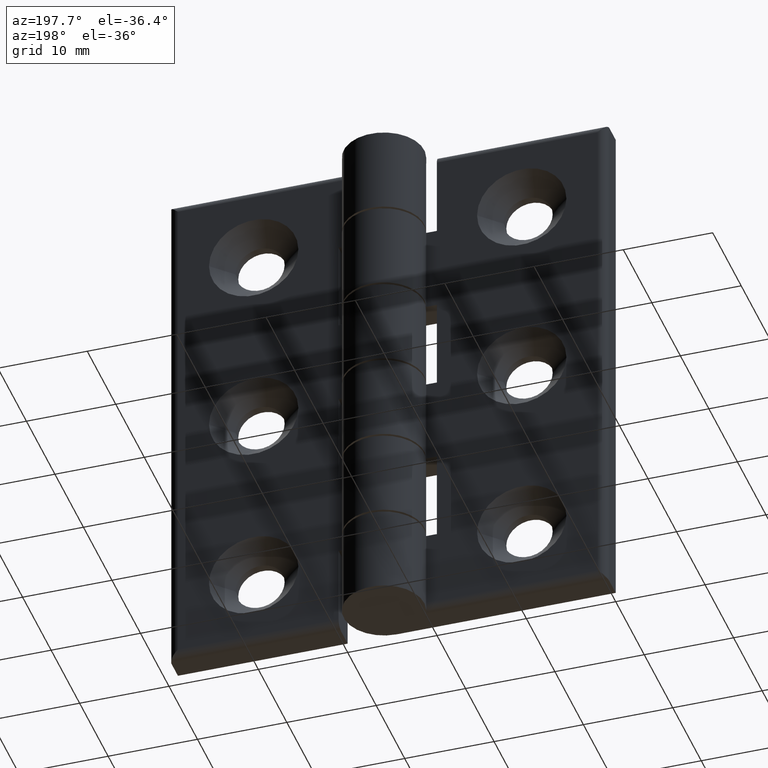
[diagram: clean part render]
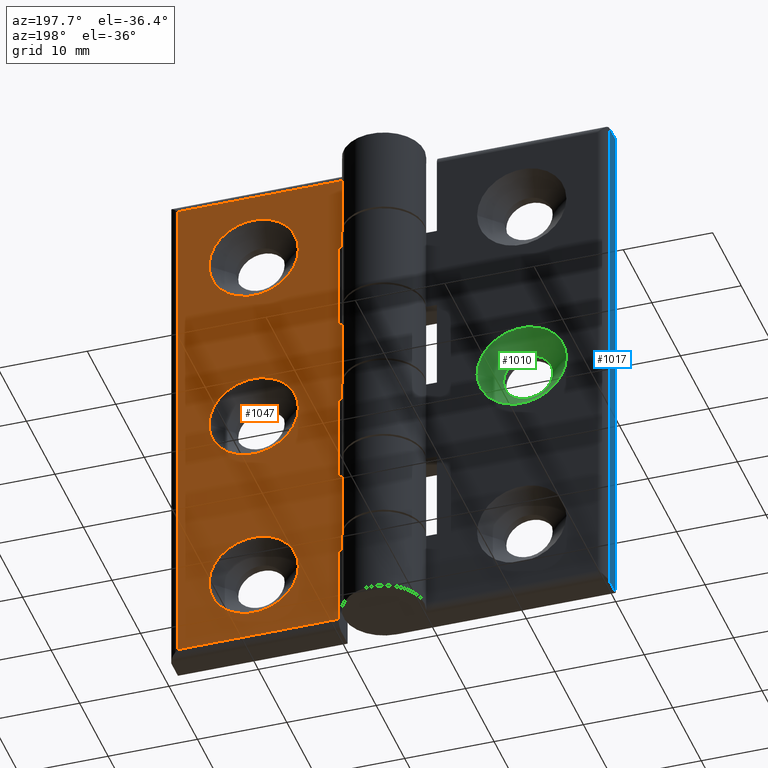
[diagram: same view with three faces highlighted in distinct colors, each labeled with its STEP entity id]
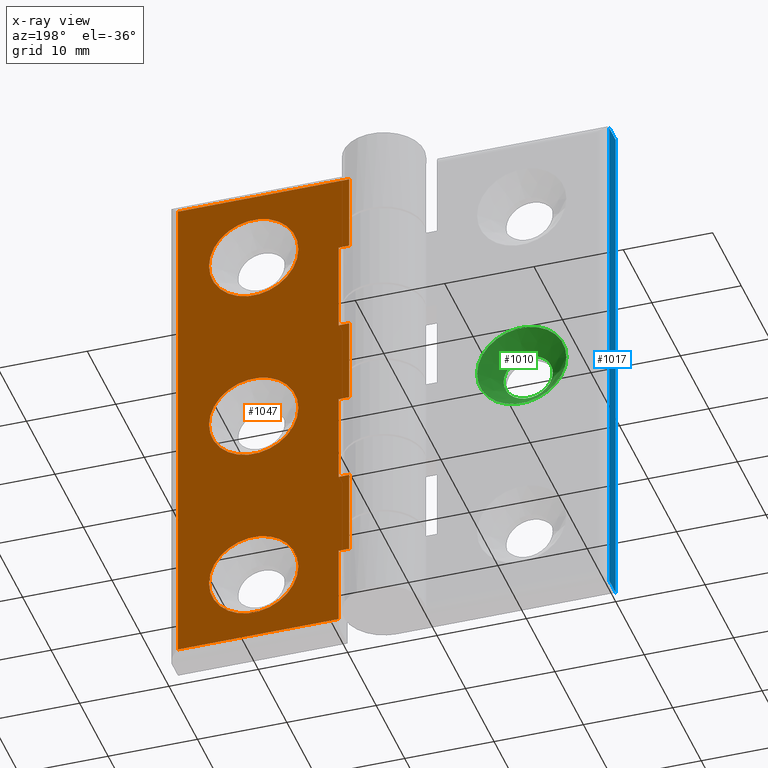
[diagram: x-ray of the same camera — body ghosted, the three highlighted faces saturated]
A machine part, auxiliary view with three faces highlighted in distinct colors.
The next image is the same camera in x-ray (body ghosted, the three faces saturated) — at least one of them is partly hidden behind the body in this view.
Their STEP definitions:

[orange] entity #1047 — the highlighted planar face has unit normal (-0, 1, 0).
#80=FACE_BOUND('',#312,.T.);
#81=FACE_BOUND('',#313,.T.);
#82=FACE_BOUND('',#314,.T.);
#109=PLANE('',#1159);
#150=CIRCLE('',#1147,5.);
#152=CIRCLE('',#1151,5.);
#154=CIRCLE('',#1155,5.);
#213=FACE_OUTER_BOUND('',#311,.T.);
#311=EDGE_LOOP('',(#946,#947,#948,#949,#950,#951,#952,#953,#954,#955,#956,
#957,#958,#959));
#312=EDGE_LOOP('',(#960));
#313=EDGE_LOOP('',(#961));
#314=EDGE_LOOP('',(#962));
#365=LINE('',#1637,#443);
#366=LINE('',#1641,#444);
#368=LINE('',#1647,#446);
#376=LINE('',#1679,#454);
#379=LINE('',#1689,#457);
#382=LINE('',#1695,#460);
#384=LINE('',#1704,#462);
#388=LINE('',#1714,#466);
#389=LINE('',#1718,#467);
#392=LINE('',#1728,#470);
#395=LINE('',#1734,#473);
#400=LINE('',#1751,#478);
#401=LINE('',#1753,#479);
#402=LINE('',#1755,#480);
#443=VECTOR('',#1322,18.);
#444=VECTOR('',#1327,58.);
#446=VECTOR('',#1333,19.1918681542924);
#454=VECTOR('',#1353,1.1918681542924);
#457=VECTOR('',#1362,10.28);
#460=VECTOR('',#1367,1.1918681542924);
#462=VECTOR('',#1375,1.1918681542924);
#466=VECTOR('',#1385,9.04);
#467=VECTOR('',#1388,1.19186815429241);
#470=VECTOR('',#1397,10.28);
#473=VECTOR('',#1402,1.1918681542924);
#478=VECTOR('',#1421,8.80000000000001);
#479=VECTOR('',#1424,9.8);
#480=VECTOR('',#1427,9.8);
#530=VERTEX_POINT('',#1634);
#531=VERTEX_POINT('',#1636);
#532=VERTEX_POINT('',#1640);
#534=VERTEX_POINT('',#1646);
#541=VERTEX_POINT('',#1677);
#542=VERTEX_POINT('',#1678);
#546=VERTEX_POINT('',#1688);
#548=VERTEX_POINT('',#1694);
#551=VERTEX_POINT('',#1702);
#552=VERTEX_POINT('',#1703);
#556=VERTEX_POINT('',#1716);
#557=VERTEX_POINT('',#1717);
#561=VERTEX_POINT('',#1727);
#563=VERTEX_POINT('',#1733);
#569=VERTEX_POINT('',#1759);
#571=VERTEX_POINT('',#1765);
#573=VERTEX_POINT('',#1771);
#643=EDGE_CURVE('',#530,#531,#365,.T.);
#645=EDGE_CURVE('',#531,#532,#366,.T.);
#648=EDGE_CURVE('',#532,#534,#368,.T.);
#659=EDGE_CURVE('',#541,#542,#376,.T.);
#664=EDGE_CURVE('',#546,#541,#379,.T.);
#667=EDGE_CURVE('',#548,#546,#382,.T.);
#671=EDGE_CURVE('',#551,#552,#384,.T.);
#677=EDGE_CURVE('',#530,#551,#388,.T.);
#678=EDGE_CURVE('',#556,#557,#389,.T.);
#683=EDGE_CURVE('',#561,#556,#392,.T.);
#686=EDGE_CURVE('',#563,#561,#395,.T.);
#696=EDGE_CURVE('',#557,#534,#400,.T.);
#697=EDGE_CURVE('',#552,#548,#401,.T.);
#698=EDGE_CURVE('',#542,#563,#402,.T.);
#699=EDGE_CURVE('',#569,#569,#150,.T.);
#701=EDGE_CURVE('',#571,#571,#152,.T.);
#703=EDGE_CURVE('',#573,#573,#154,.T.);
#946=ORIENTED_EDGE('',*,*,#643,.F.);
#947=ORIENTED_EDGE('',*,*,#677,.T.);
#948=ORIENTED_EDGE('',*,*,#671,.T.);
#949=ORIENTED_EDGE('',*,*,#697,.T.);
#950=ORIENTED_EDGE('',*,*,#667,.T.);
#951=ORIENTED_EDGE('',*,*,#664,.T.);
#952=ORIENTED_EDGE('',*,*,#659,.T.);
#953=ORIENTED_EDGE('',*,*,#698,.T.);
#954=ORIENTED_EDGE('',*,*,#686,.T.);
#955=ORIENTED_EDGE('',*,*,#683,.T.);
#956=ORIENTED_EDGE('',*,*,#678,.T.);
#957=ORIENTED_EDGE('',*,*,#696,.T.);
#958=ORIENTED_EDGE('',*,*,#648,.F.);
#959=ORIENTED_EDGE('',*,*,#645,.F.);
#960=ORIENTED_EDGE('',*,*,#699,.T.);
#961=ORIENTED_EDGE('',*,*,#701,.T.);
#962=ORIENTED_EDGE('',*,*,#703,.T.);
#1047=ADVANCED_FACE('',(#213,#80,#81,#82),#109,.T.);
#1147=AXIS2_PLACEMENT_3D('',#1760,#1434,#1435);
#1151=AXIS2_PLACEMENT_3D('',#1766,#1442,#1443);
#1155=AXIS2_PLACEMENT_3D('',#1772,#1450,#1451);
#1159=AXIS2_PLACEMENT_3D('',#1777,#1458,#1459);
#1322=DIRECTION('',(1.,1.09967340925723E-16,0.));
#1327=DIRECTION('',(0.,0.,1.));
#1333=DIRECTION('',(-1.,-1.09967340925723E-16,0.));
#1353=DIRECTION('',(-1.,-1.09967340925723E-16,0.));
#1362=DIRECTION('',(0.,0.,1.));
#1367=DIRECTION('',(1.,1.09967340925723E-16,2.22044604925031E-16));
#1375=DIRECTION('',(-1.,-1.09967340925723E-16,4.44089209850063E-16));
#1385=DIRECTION('',(0.,0.,1.));
#1388=DIRECTION('',(-1.,-1.09967340925723E-16,0.));
#1397=DIRECTION('',(4.31993394795781E-16,4.75051649231679E-32,1.));
#1402=DIRECTION('',(1.,1.09967340925723E-16,0.));
#1421=DIRECTION('',(0.,0.,1.));
#1424=DIRECTION('',(0.,0.,1.));
#1427=DIRECTION('',(0.,0.,1.));
#1434=DIRECTION('center_axis',(1.09967340925723E-16,-1.,0.));
#1435=DIRECTION('ref_axis',(1.,1.09967340925723E-16,0.));
#1442=DIRECTION('center_axis',(1.09967340925723E-16,-1.,0.));
#1443=DIRECTION('ref_axis',(1.,1.09967340925723E-16,0.));
#1450=DIRECTION('center_axis',(1.09967340925723E-16,-1.,0.));
#1451=DIRECTION('ref_axis',(1.,1.09967340925723E-16,0.));
#1458=DIRECTION('center_axis',(-1.09967340925723E-16,1.,0.));
#1459=DIRECTION('ref_axis',(-1.,-8.88178419700125E-17,0.));
#1634=CARTESIAN_POINT('',(30.,3.2,1.));
#1636=CARTESIAN_POINT('',(48.,3.2,1.));
#1637=CARTESIAN_POINT('',(41.8327133071013,3.2,1.));
#1640=CARTESIAN_POINT('',(48.,3.2,59.));
#1641=CARTESIAN_POINT('',(48.,3.2,0.));
#1646=CARTESIAN_POINT('',(28.8081318457076,3.2,59.));
#1647=CARTESIAN_POINT('',(41.8327133071013,3.2,59.));
#1677=CARTESIAN_POINT('',(30.,3.2,30.12));
#1678=CARTESIAN_POINT('',(28.8081318457076,3.2,30.12));
#1679=CARTESIAN_POINT('',(39.5,3.2,30.12));
#1688=CARTESIAN_POINT('',(30.,3.2,19.84));
#1689=CARTESIAN_POINT('',(30.,3.2,9.92));
#1694=CARTESIAN_POINT('',(28.8081318457076,3.2,19.84));
#1695=CARTESIAN_POINT('',(34.5,3.2,19.84));
#1702=CARTESIAN_POINT('',(30.,3.2,10.04));
#1703=CARTESIAN_POINT('',(28.8081318457076,3.2,10.04));
#1704=CARTESIAN_POINT('',(39.5,3.2,10.04));
#1714=CARTESIAN_POINT('',(30.,3.2,0.));
#1716=CARTESIAN_POINT('',(30.,3.2,50.2));
#1717=CARTESIAN_POINT('',(28.8081318457076,3.2,50.2));
#1718=CARTESIAN_POINT('',(39.5,3.2,50.2));
#1727=CARTESIAN_POINT('',(30.,3.2,39.92));
#1728=CARTESIAN_POINT('',(30.,3.2,19.96));
#1733=CARTESIAN_POINT('',(28.8081318457076,3.2,39.92));
#1734=CARTESIAN_POINT('',(34.5,3.2,39.92));
#1751=CARTESIAN_POINT('',(28.8081318457076,3.2,0.));
#1753=CARTESIAN_POINT('',(28.8081318457076,3.2,0.));
#1755=CARTESIAN_POINT('',(28.8081318457076,3.2,0.));
#1759=CARTESIAN_POINT('',(44.5,3.2,30.));
#1760=CARTESIAN_POINT('Origin',(39.5,3.2,30.));
#1765=CARTESIAN_POINT('',(44.5,3.2,9.));
#1766=CARTESIAN_POINT('Origin',(39.5,3.2,9.));
#1771=CARTESIAN_POINT('',(44.5,3.2,51.));
#1772=CARTESIAN_POINT('Origin',(39.5,3.2,51.));
#1777=CARTESIAN_POINT('Origin',(49.,3.2,0.));

[blue] entity #1017 — the highlighted planar face has unit normal (-1, 0, 0).
#94=PLANE('',#1104);
#183=FACE_OUTER_BOUND('',#262,.T.);
#262=EDGE_LOOP('',(#822,#823,#824,#825));
#327=LINE('',#1501,#405);
#359=LINE('',#1593,#437);
#362=LINE('',#1625,#440);
#363=LINE('',#1626,#441);
#405=VECTOR('',#1180,60.);
#437=VECTOR('',#1264,60.);
#440=VECTOR('',#1309,2.2);
#441=VECTOR('',#1310,2.2);
#484=VERTEX_POINT('',#1496);
#485=VERTEX_POINT('',#1500);
#518=VERTEX_POINT('',#1590);
#519=VERTEX_POINT('',#1592);
#581=EDGE_CURVE('',#484,#485,#327,.T.);
#628=EDGE_CURVE('',#519,#518,#359,.T.);
#639=EDGE_CURVE('',#484,#519,#362,.T.);
#640=EDGE_CURVE('',#485,#518,#363,.T.);
#822=ORIENTED_EDGE('',*,*,#581,.F.);
#823=ORIENTED_EDGE('',*,*,#639,.T.);
#824=ORIENTED_EDGE('',*,*,#628,.T.);
#825=ORIENTED_EDGE('',*,*,#640,.F.);
#1017=ADVANCED_FACE('',(#183),#94,.T.);
#1104=AXIS2_PLACEMENT_3D('',#1624,#1307,#1308);
#1180=DIRECTION('',(0.,0.,1.));
#1264=DIRECTION('',(0.,0.,1.));
#1307=DIRECTION('center_axis',(-1.,0.,0.));
#1308=DIRECTION('ref_axis',(0.,-1.,0.));
#1309=DIRECTION('',(0.,-1.,0.));
#1310=DIRECTION('',(0.,-1.,0.));
#1496=CARTESIAN_POINT('',(0.,2.2,0.));
#1500=CARTESIAN_POINT('',(0.,2.2,60.));
#1501=CARTESIAN_POINT('',(0.,2.2,0.));
#1590=CARTESIAN_POINT('',(0.,0.,60.));
#1592=CARTESIAN_POINT('',(0.,0.,0.));
#1593=CARTESIAN_POINT('',(0.,0.,0.));
#1624=CARTESIAN_POINT('Origin',(0.,3.2,0.));
#1625=CARTESIAN_POINT('',(0.,3.2,0.));
#1626=CARTESIAN_POINT('',(0.,3.2,60.));

[green] entity #1010 — the highlighted conical surface has half-angle 45 deg.
#35=CONICAL_SURFACE('',#1094,3.875,45.);
#54=FACE_BOUND('',#249,.T.);
#115=CIRCLE('',#1064,5.);
#131=CIRCLE('',#1095,2.75);
#176=FACE_OUTER_BOUND('',#248,.T.);
#248=EDGE_LOOP('',(#808));
#249=EDGE_LOOP('',(#809));
#501=VERTEX_POINT('',#1537);
#525=VERTEX_POINT('',#1612);
#600=EDGE_CURVE('',#501,#501,#115,.T.);
#636=EDGE_CURVE('',#525,#525,#131,.T.);
#808=ORIENTED_EDGE('',*,*,#600,.F.);
#809=ORIENTED_EDGE('',*,*,#636,.F.);
#1010=ADVANCED_FACE('',(#176,#54),#35,.F.);
#1064=AXIS2_PLACEMENT_3D('',#1538,#1207,#1208);
#1094=AXIS2_PLACEMENT_3D('',#1611,#1287,#1288);
#1095=AXIS2_PLACEMENT_3D('',#1613,#1289,#1290);
#1207=DIRECTION('center_axis',(1.09967340925723E-16,-1.,0.));
#1208=DIRECTION('ref_axis',(1.,1.09967340925723E-16,0.));
#1287=DIRECTION('center_axis',(-1.09967340925723E-16,1.,0.));
#1288=DIRECTION('ref_axis',(1.,1.09967340925723E-16,0.));
#1289=DIRECTION('center_axis',(-1.09967340925723E-16,1.,0.));
#1290=DIRECTION('ref_axis',(1.,1.09967340925723E-16,0.));
#1537=CARTESIAN_POINT('',(14.5,3.2,30.));
#1538=CARTESIAN_POINT('Origin',(9.5,3.2,30.));
#1611=CARTESIAN_POINT('Origin',(9.5,2.075,30.));
#1612=CARTESIAN_POINT('',(12.25,0.95,30.));
#1613=CARTESIAN_POINT('Origin',(9.5,0.95,30.));